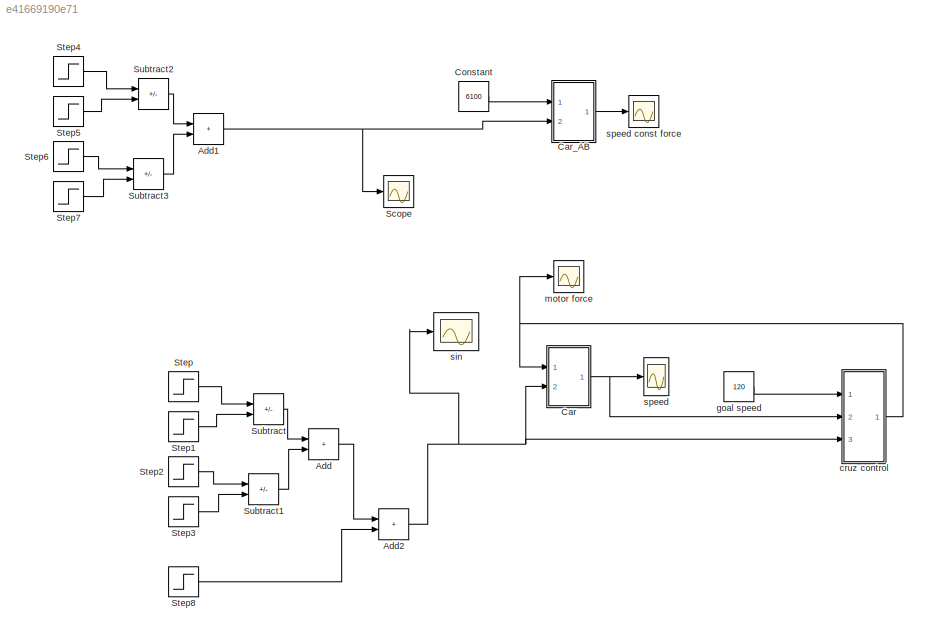
MODEL slx_e41669190e71
KIND model
CONFIG AbsTol = auto
CONFIG EnableMultiTasking = off
CONFIG FixedStep = auto
CONFIG MaxStep = auto
CONFIG MinStep = auto
CONFIG RelTol = 1e-3
CONFIG SampleTimeConstraint = Unconstrained
CONFIG SolverName = VariableStepAuto
CONFIG StartTime = 0.0
CONFIG StopTime = 150
BLOCK [Sum] Add
  IconShape = rectangular
  Ports = [2, 1]
BLOCK [Sum] Add1
  IconShape = rectangular
  Ports = [2, 1]
BLOCK [Sum] Add2
  IconShape = rectangular
  Ports = [2, 1]
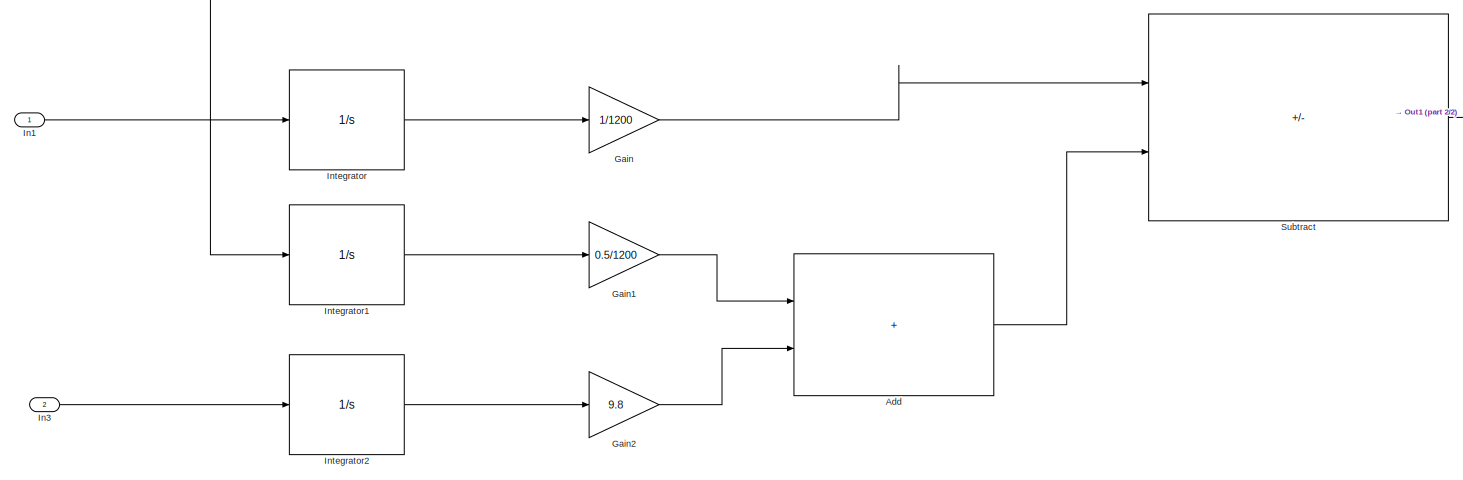
[diagram: Car - part 1/2, most of the canvas]
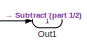
[diagram: Car - part 2/2, top right region]
BLOCK [SubSystem] Car
  Ports = [2, 1]
  RequestExecContextInheritance = off
BLOCK [Sum] Car/Add
  IconShape = rectangular
  Ports = [2, 1]
BLOCK [Gain] Car/Gain
  Gain = 1/1200
BLOCK [Gain] Car/Gain1
  Gain = 0.5/1200
BLOCK [Gain] Car/Gain2
  Gain = 9.8
BLOCK [Inport] Car/In1
BLOCK [Inport] Car/In3
  Port = 2
BLOCK [Integrator] Car/Integrator
  Ports = [1, 1]
BLOCK [Integrator] Car/Integrator1
  Ports = [1, 1]
BLOCK [Integrator] Car/Integrator2
  Ports = [1, 1]
BLOCK [Outport] Car/Out1
BLOCK [Sum] Car/Subtract
  IconShape = rectangular
  Inputs = +-
  Ports = [2, 1]
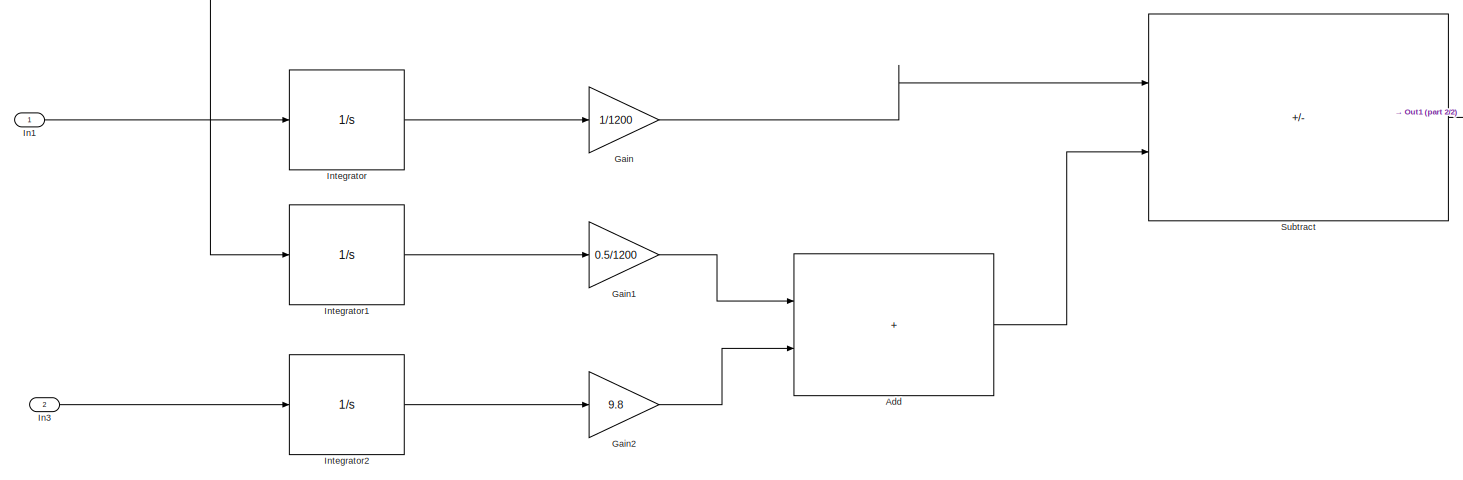
[diagram: Car_AB - part 1/2, most of the canvas]
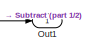
[diagram: Car_AB - part 2/2, top right region]
BLOCK [SubSystem] Car_AB
  Ports = [2, 1]
  RequestExecContextInheritance = off
BLOCK [Sum] Car_AB/Add
  IconShape = rectangular
  Ports = [2, 1]
BLOCK [Gain] Car_AB/Gain
  Gain = 1/1200
BLOCK [Gain] Car_AB/Gain1
  Gain = 0.5/1200
BLOCK [Gain] Car_AB/Gain2
  Gain = 9.8
BLOCK [Inport] Car_AB/In1
BLOCK [Inport] Car_AB/In3
  Port = 2
BLOCK [Integrator] Car_AB/Integrator
  Ports = [1, 1]
BLOCK [Integrator] Car_AB/Integrator1
  Ports = [1, 1]
BLOCK [Integrator] Car_AB/Integrator2
  Ports = [1, 1]
BLOCK [Outport] Car_AB/Out1
BLOCK [Sum] Car_AB/Subtract
  IconShape = rectangular
  Inputs = +-
  Ports = [2, 1]
BLOCK [Constant] Constant
  Value = 6100
BLOCK [Scope] Scope
  Floating = off
  NumInputPorts = 1
  Ports = [1]
  ScopeSpecificationString = Simulink.scopes.TimeScopeBlockCfg('CurrentConfiguration', extmgr.ConfigurationSet(extmgr.Configuration('Core','General UI',true),extmgr.Configuration('Core','Source UI',true),extmgr.Configuration('Sources','WiredSimulink',true,'DataLoggingVariableName','ScopeData1'),extmgr.Configuration('Visuals','Time Domain',true,'SerializedDisplays',{struct('MinYLimReal','-0.0625','MaxYLimReal','0.5625','YLabel...<+1395ch>
BLOCK [Step] Step
  After = 0.1
  SampleTime = 0
  Time = 0
BLOCK [Step] Step1
  After = 0.1
  SampleTime = 20
BLOCK [Step] Step2
  After = 0.2
  SampleTime = 20
BLOCK [Step] Step3
  After = 0.2
  SampleTime = 40
BLOCK [Step] Step4
  After = 0.1
  SampleTime = 0
  Time = 0
BLOCK [Step] Step5
  After = 0.1
  SampleTime = 20
BLOCK [Step] Step6
  After = 0.5
  SampleTime = 20
BLOCK [Step] Step7
  After = 0.5
  SampleTime = 40
BLOCK [Step] Step8
  After = 0.5
  SampleTime = 40
BLOCK [Sum] Subtract
  IconShape = rectangular
  Inputs = +-
  Ports = [2, 1]
BLOCK [Sum] Subtract1
  IconShape = rectangular
  Inputs = +-
  Ports = [2, 1]
BLOCK [Sum] Subtract2
  IconShape = rectangular
  Inputs = +-
  Ports = [2, 1]
BLOCK [Sum] Subtract3
  IconShape = rectangular
  Inputs = +-
  Ports = [2, 1]
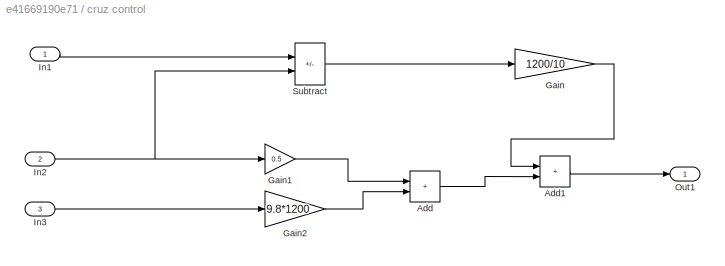
BLOCK [SubSystem] cruz control
  Ports = [3, 1]
  RequestExecContextInheritance = off
BLOCK [Sum] cruz control/Add
  IconShape = rectangular
  Ports = [2, 1]
BLOCK [Sum] cruz control/Add1
  IconShape = rectangular
  Ports = [2, 1]
BLOCK [Gain] cruz control/Gain
  Gain = 1200/10
BLOCK [Gain] cruz control/Gain1
  Gain = 0.5
BLOCK [Gain] cruz control/Gain2
  Gain = 9.8*1200
BLOCK [Inport] cruz control/In1
BLOCK [Inport] cruz control/In2
  Port = 2
BLOCK [Inport] cruz control/In3
  Port = 3
BLOCK [Outport] cruz control/Out1
BLOCK [Sum] cruz control/Subtract
  IconShape = rectangular
  Inputs = +-
  Ports = [2, 1]
BLOCK [Constant] goal speed
  Value = 120
BLOCK [Scope] motor force
  Floating = off
  NumInputPorts = 1
  Ports = [1]
  ScopeSpecificationString = Simulink.scopes.TimeScopeBlockCfg('CurrentConfiguration', extmgr.ConfigurationSet(extmgr.Configuration('Core','General UI',true),extmgr.Configuration('Core','Source UI',true),extmgr.Configuration('Sources','WiredSimulink',true,'DataLoggingVariableName','ScopeData1'),extmgr.Configuration('Visuals','Time Domain',true,'SerializedDisplays',{struct('MinYLimReal','1127.39784','MaxYLimReal','17181.40024'...<+1425ch>
BLOCK [Scope] sin
  Floating = off
  NumInputPorts = 1
  Ports = [1]
  ScopeSpecificationString = Simulink.scopes.TimeScopeBlockCfg('CurrentConfiguration', extmgr.ConfigurationSet(extmgr.Configuration('Core','General UI',true),extmgr.Configuration('Core','Source UI',true),extmgr.Configuration('Sources','WiredSimulink',true,'DataLoggingVariableName','ScopeData1'),extmgr.Configuration('Visuals','Time Domain',true,'SerializedDisplays',{struct('MinYLimReal','0.05','MaxYLimReal','0.55','YLabelReal'...<+1373ch>
BLOCK [Scope] speed
  Floating = off
  NumInputPorts = 1
  Ports = [1]
  ScopeSpecificationString = Simulink.scopes.TimeScopeBlockCfg('CurrentConfiguration', extmgr.ConfigurationSet(extmgr.Configuration('Core','General UI',true),extmgr.Configuration('Core','Source UI',true),extmgr.Configuration('Sources','WiredSimulink',true,'DataLoggingVariableName','ScopeData1'),extmgr.Configuration('Visuals','Time Domain',true,'SerializedDisplays',{struct('MinYLimReal','-15.00000','MaxYLimReal','134.99996','Y...<+1428ch>
BLOCK [Scope] speed const force
  Floating = off
  NumInputPorts = 1
  Ports = [1]
  ScopeSpecificationString = Simulink.scopes.TimeScopeBlockCfg('CurrentConfiguration', extmgr.ConfigurationSet(extmgr.Configuration('Core','General UI',true),extmgr.Configuration('Core','Source UI',true),extmgr.Configuration('Sources','WiredSimulink',true),extmgr.Configuration('Visuals','Time Domain',true,'SerializedDisplays',{struct('MinYLimReal','-78.43131','MaxYLimReal','705.88176','YLabelReal','','MinYLimMag','0.00000','M...<+1376ch>
NET Add1:1 -> Car_AB:2, Scope:1
NET Add2:1 -> Car:2, cruz control:3, sin:1
LINE Add:1 -> Add2:1
LINE Car/Add:1 -> Car/Subtract:2
LINE Car/Gain1:1 -> Car/Add:1
LINE Car/Gain2:1 -> Car/Add:2
LINE Car/Gain:1 -> Car/Subtract:1
LINE Car/In1:1 -> Car/Integrator:1
LINE Car/In3:1 -> Car/Integrator2:1
LINE Car/Integrator1:1 -> Car/Gain1:1
LINE Car/Integrator2:1 -> Car/Gain2:1
LINE Car/Integrator:1 -> Car/Gain:1
NET Car/Subtract:1 -> Car/Integrator1:1, Car/Out1:1
NET Car:1 -> cruz control:2, speed:1
LINE Car_AB/Add:1 -> Car_AB/Subtract:2
LINE Car_AB/Gain1:1 -> Car_AB/Add:1
LINE Car_AB/Gain2:1 -> Car_AB/Add:2
LINE Car_AB/Gain:1 -> Car_AB/Subtract:1
LINE Car_AB/In1:1 -> Car_AB/Integrator:1
LINE Car_AB/In3:1 -> Car_AB/Integrator2:1
LINE Car_AB/Integrator1:1 -> Car_AB/Gain1:1
LINE Car_AB/Integrator2:1 -> Car_AB/Gain2:1
LINE Car_AB/Integrator:1 -> Car_AB/Gain:1
NET Car_AB/Subtract:1 -> Car_AB/Integrator1:1, Car_AB/Out1:1
LINE Car_AB:1 -> speed const force:1
LINE Constant:1 -> Car_AB:1
LINE Step1:1 -> Subtract:2
LINE Step2:1 -> Subtract1:1
LINE Step3:1 -> Subtract1:2
LINE Step4:1 -> Subtract2:1
LINE Step5:1 -> Subtract2:2
LINE Step6:1 -> Subtract3:1
LINE Step7:1 -> Subtract3:2
LINE Step8:1 -> Add2:2
LINE Step:1 -> Subtract:1
LINE Subtract1:1 -> Add:2
LINE Subtract2:1 -> Add1:1
LINE Subtract3:1 -> Add1:2
LINE Subtract:1 -> Add:1
LINE cruz control/Add1:1 -> cruz control/Out1:1
LINE cruz control/Add:1 -> cruz control/Add1:2
LINE cruz control/Gain1:1 -> cruz control/Add:1
LINE cruz control/Gain2:1 -> cruz control/Add:2
LINE cruz control/Gain:1 -> cruz control/Add1:1
LINE cruz control/In1:1 -> cruz control/Subtract:1
NET cruz control/In2:1 -> cruz control/Gain1:1, cruz control/Subtract:2
LINE cruz control/In3:1 -> cruz control/Gain2:1
LINE cruz control/Subtract:1 -> cruz control/Gain:1
NET cruz control:1 -> Car:1, motor force:1
LINE goal speed:1 -> cruz control:1
note: NET lines group one-source signal fan-out (src -> all destinations, sorted); 1:1 wires keep LINE
